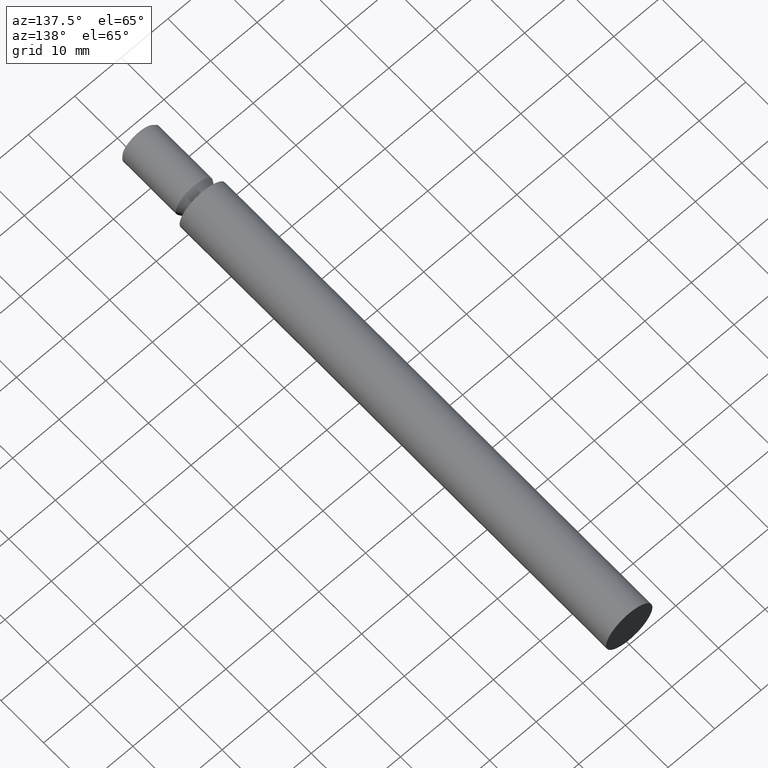
[diagram: clean part render]
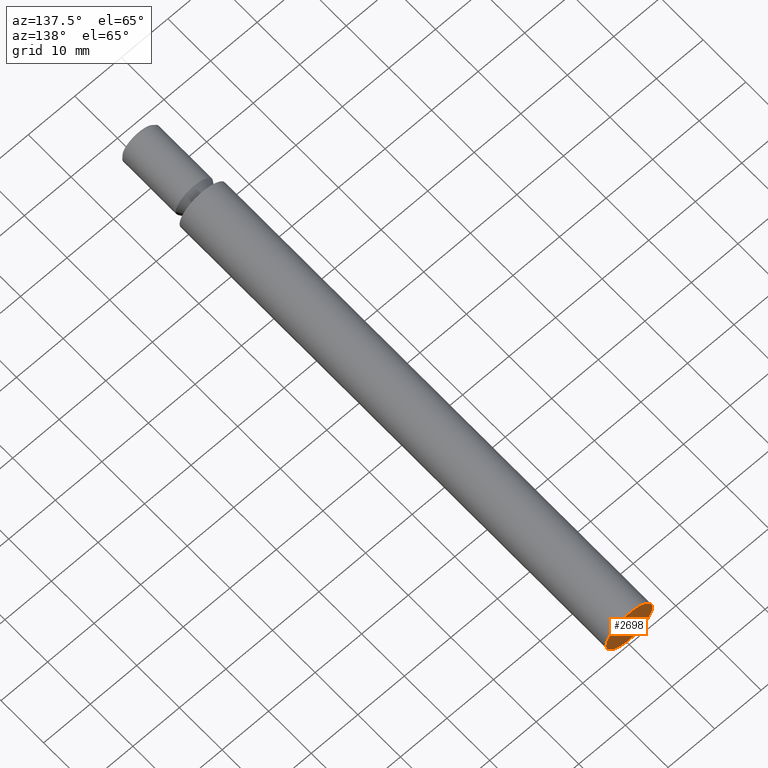
[diagram: same view with one face highlighted and labeled with its STEP entity id]
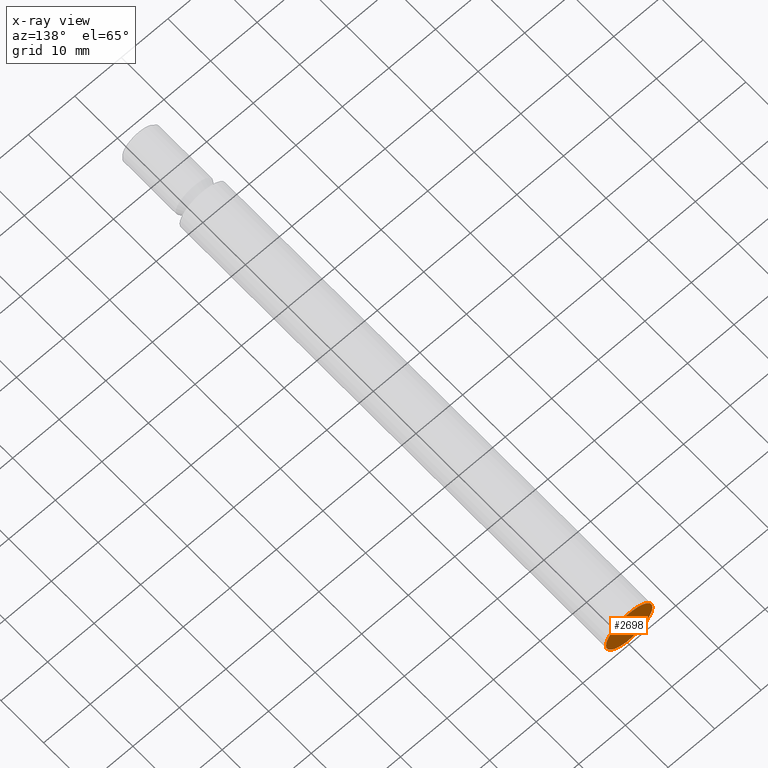
[diagram: x-ray of the same camera — body ghosted, the highlighted face saturated]
A machine part, auxiliary view. The second image highlights one B-rep face of the part: STEP entity #2698.
The next image is the same camera in x-ray: the body ghosted, the highlighted face saturated — about 0% of this face is hidden behind the body in this view.
In plain terms, the highlighted planar face has unit normal (-0, 1, 0).
Its self-contained STEP definition (entity closure, byte-faithful):
#76 = FACE_OUTER_BOUND ( 'NONE', #6944, .T. ) ;
#504 = EDGE_CURVE ( 'NONE', #2290, #2290, #11768, .T. ) ;
#1117 = AXIS2_PLACEMENT_3D ( 'NONE', #3930, #8852, #7048 ) ;
#1361 = DIRECTION ( 'NONE',  ( -1.000000000000000000, -1.674721690771509348E-33, 0.000000000000000000 ) ) ;
#2197 = CARTESIAN_POINT ( 'NONE',  ( 4.999999999999993783, 100.0000000000000000, 0.000000000000000000 ) ) ;
#2290 = VERTEX_POINT ( 'NONE', #2197 ) ;
#2698 = ADVANCED_FACE ( 'NONE', ( #76 ), #9629, .T. ) ;
#3930 = CARTESIAN_POINT ( 'NONE',  ( 0.000000000000000000, 100.0000000000000000, 0.000000000000000000 ) ) ;
#6449 = DIRECTION ( 'NONE',  ( -1.674721690771509348E-33, 1.000000000000000000, 0.000000000000000000 ) ) ;
#6944 = EDGE_LOOP ( 'NONE', ( #9410 ) ) ;
#7048 = DIRECTION ( 'NONE',  ( 1.000000000000000000, 0.000000000000000000, 0.000000000000000000 ) ) ;
#8852 = DIRECTION ( 'NONE',  ( 1.674721690771509348E-33, -1.000000000000000000, -0.000000000000000000 ) ) ;
#9198 = AXIS2_PLACEMENT_3D ( 'NONE', #12911, #6449, #1361 ) ;
#9410 = ORIENTED_EDGE ( 'NONE', *, *, #504, .F. ) ;
#9629 = PLANE ( 'NONE',  #9198 ) ;
#11768 = CIRCLE ( 'NONE', #1117, 4.999999999999993783 ) ;
#12911 = CARTESIAN_POINT ( 'NONE',  ( 7.011731853851448449E-66, 100.0000000000000000, 0.000000000000000000 ) ) ;